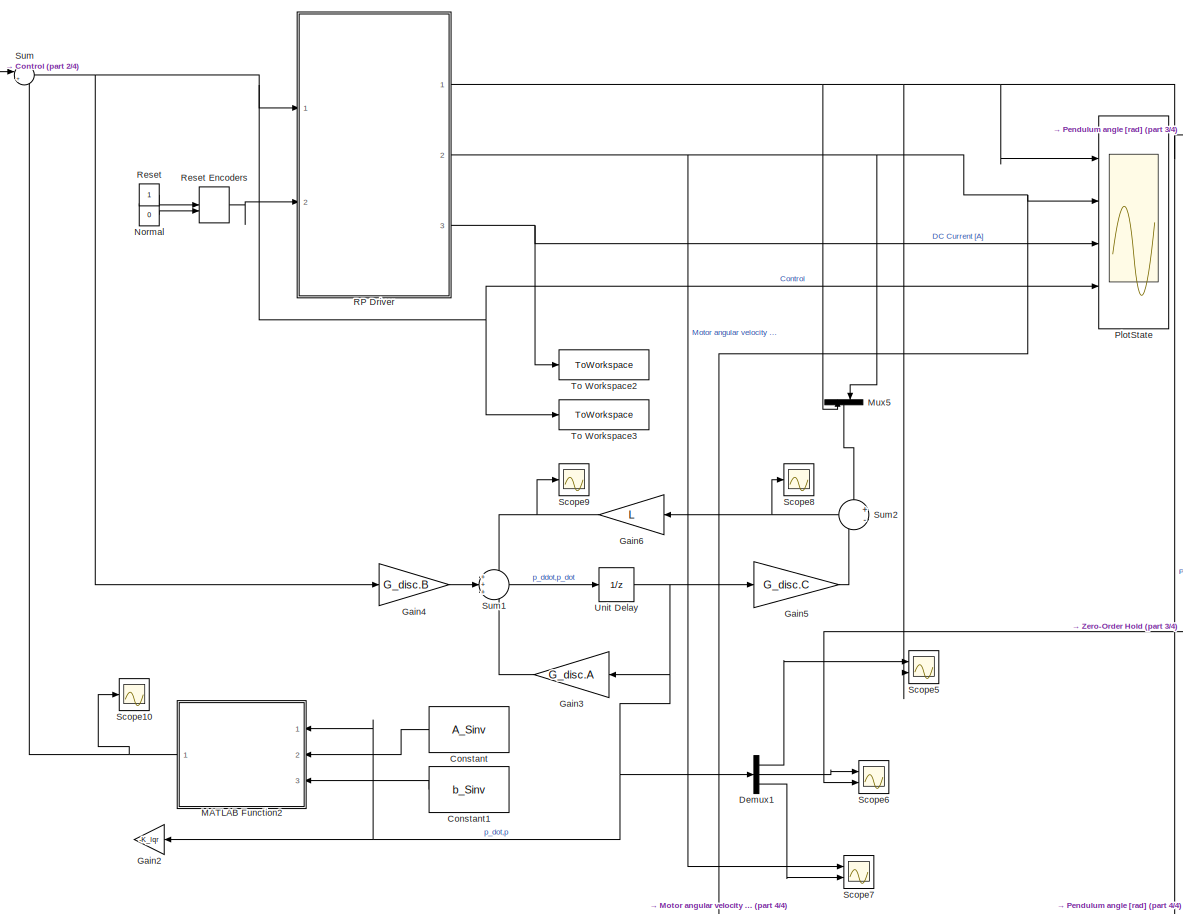
[diagram: root canvas - part 1/4, center side, full height]
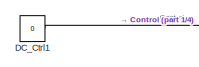
[diagram: root canvas - part 2/4, top left region]
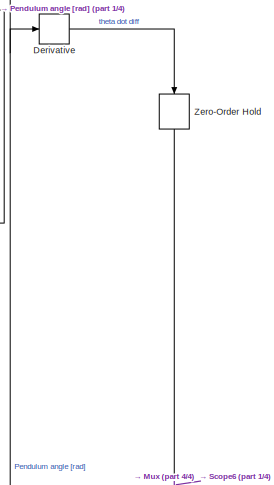
[diagram: root canvas - part 3/4, middle right region]
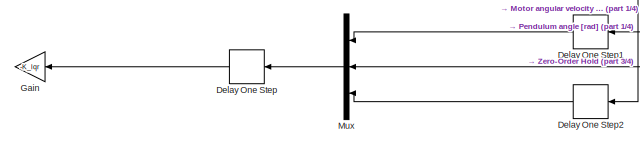
[diagram: root canvas - part 4/4, bottom center region]
MODEL slx_8f51fe5e5e6c
KIND model
CONFIG AbsTol = auto
CONFIG EnableMultiTasking = on
CONFIG FixedStep = h
CONFIG InitFcn = hwinit
CONFIG MaxStep = auto
CONFIG MinStep = auto
CONFIG PreLoadFcn = warning('off','MATLAB:dispatcher:InexactMatch');\n\n
CONFIG RelTol = 1e-3
CONFIG SampleTimeConstraint = Unconstrained
CONFIG SolverName = FixedStepDiscrete
CONFIG StartTime = 0.0
CONFIG StopTime = 60
BLOCK [Constant] Constant
  NameLocation = top
  OutDataTypeStr = Inherit: Inherit via back propagation
  Value = A_Sinv
BLOCK [Constant] Constant1
  NameLocation = top
  OutDataTypeStr = Inherit: Inherit via back propagation
  Value = b_Sinv
BLOCK [Constant] DC_Ctrl1
  Value = 0
BLOCK [Delay] Delay One Step
  DelayLength = 1
  InputPortMap = u0
  NameLocation = top
  Ports = [1, 1]
  SampleTime = h
BLOCK [Delay] Delay One Step1
  DelayLength = 1
  InputPortMap = u0
  NameLocation = top
  Ports = [1, 1]
  SampleTime = h
BLOCK [Delay] Delay One Step2
  DelayLength = 1
  InputPortMap = u0
  NameLocation = top
  Ports = [1, 1]
  SampleTime = h
BLOCK [Demux] Demux1
  Outputs = 3
  Ports = [1, 3]
BLOCK [Derivative] Derivative
BLOCK [Gain] Gain
  Gain = -K_lqr
  Multiplication = Matrix(K*u)
  NameLocation = top
BLOCK [Gain] Gain2
  Commented = through
  Gain = -K_lqr
  Multiplication = Matrix(K*u)
  NameLocation = top
BLOCK [Gain] Gain3
  Gain = G_disc.A
  Multiplication = Matrix(K*u)
  NameLocation = top
BLOCK [Gain] Gain4
  Gain = G_disc.B
  Multiplication = Matrix(K*u)
BLOCK [Gain] Gain5
  Gain = G_disc.C
  Multiplication = Matrix(K*u)
BLOCK [Gain] Gain6
  Gain = L
  Multiplication = Matrix(K*u)
  NameLocation = top
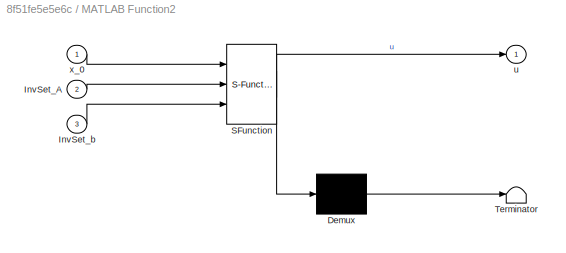
BLOCK [SubSystem] MATLAB Function2
  ErrorFcn = Stateflow.Translate.translate
  NameLocation = top
  PermitHierarchicalResolution = ExplicitOnly
  Ports = [3, 1]
  RequestExecContextInheritance = off
  SFBlockType = MATLAB Function
  TreatAsAtomicUnit = on
BLOCK [Demux] MATLAB Function2/ Demux 
  Outputs = 1
  Ports = [1, 1]
BLOCK [S-Function] MATLAB Function2/ SFunction 
  EnableBusSupport = on
  FunctionName = sf_sfun
  PortCounts = [3 2]
  Ports = [3, 2]
  SFcnIsStateOwnerBlock = off
  SFunctionDeploymentMode = off
  Tag = Stateflow S-Function 2
BLOCK [Terminator] MATLAB Function2/ Terminator 
BLOCK [Inport] MATLAB Function2/InvSet_A
  Port = 2
BLOCK [Inport] MATLAB Function2/InvSet_b
  Port = 3
BLOCK [Outport] MATLAB Function2/u
BLOCK [Inport] MATLAB Function2/x_0
BLOCK [Mux] Mux
  DisplayOption = bar
  Inputs = 3
  NameLocation = top
  Ports = [3, 1]
BLOCK [Mux] Mux5
  DisplayOption = bar
  Inputs = 2
  NameLocation = left
  Ports = [2, 1]
BLOCK [Constant] Normal
  Value = 0
BLOCK [Scope] PlotState
  Floating = off
  NumInputPorts = 4
  Ports = [4]
  ScopeSpecificationString = Simulink.scopes.TimeScopeBlockCfg('CurrentConfiguration', extmgr.ConfigurationSet(extmgr.Configuration('Core','General UI',true),extmgr.Configuration('Core','Source UI',true),extmgr.Configuration('Sources','WiredSimulink',true,'DataLoggingVariableName','StateData','DataLoggingSaveFormat','StructureWithTime','DataLoggingMaxPoints','12000','DataLoggingDecimation','1','DataLoggingDecimateData',true),...<+3764ch>
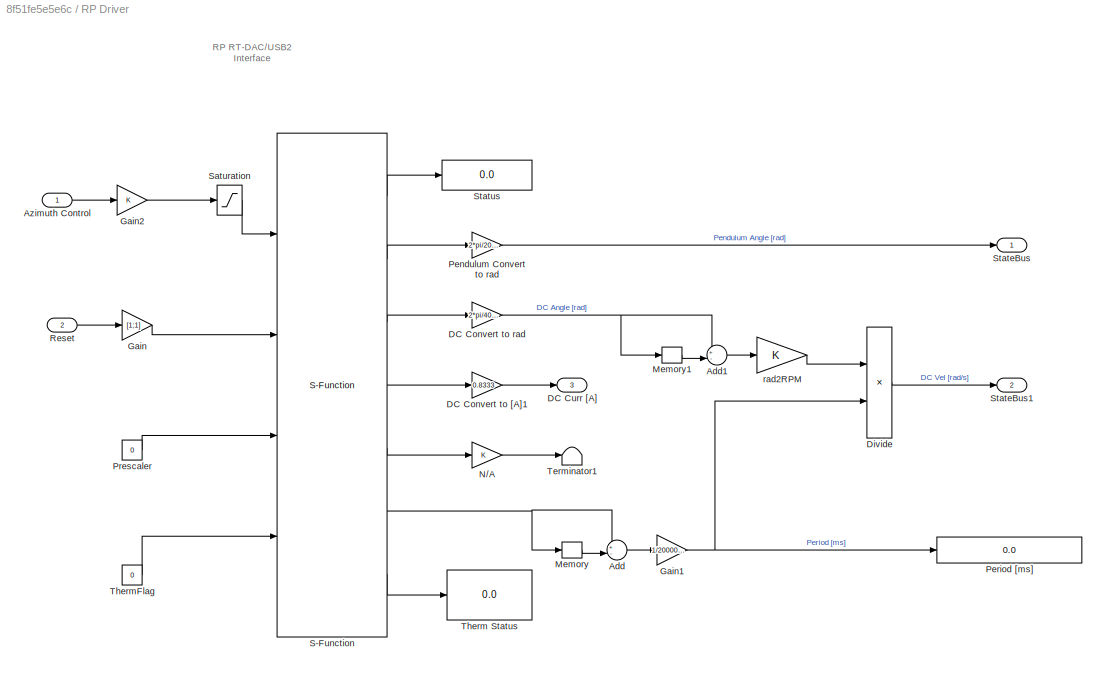
BLOCK [SubSystem] RP Driver
  Ports = [2, 3]
  RequestExecContextInheritance = off
BLOCK [Sum] RP Driver/Add
  Inputs = +-|
  Ports = [2, 1]
BLOCK [Sum] RP Driver/Add1
  Inputs = +-|
  Ports = [2, 1]
BLOCK [Inport] RP Driver/Azimuth Control
BLOCK [Gain] RP Driver/DC Convert to [A]1
  Gain = 0.8333
  OutDataTypeStr = Inherit: Same as input
  ParamDataTypeStr = Inherit: Same as input
  SaturateOnIntegerOverflow = on
BLOCK [Gain] RP Driver/DC Convert to rad
  Gain = 2*pi/4096
  OutDataTypeStr = Inherit: Same as input
  ParamDataTypeStr = Inherit: Same as input
  SaturateOnIntegerOverflow = on
BLOCK [Outport] RP Driver/DC Curr [A]
  Port = 3
  VectorParamsAs1DForOutWhenUnconnected = off
BLOCK [Product] RP Driver/Divide
  Inputs = */
  Ports = [2, 1]
BLOCK [Gain] RP Driver/Gain
  Gain = [1;1]
BLOCK [Gain] RP Driver/Gain1
  Gain = 1/20000000
BLOCK [Gain] RP Driver/Gain2
BLOCK [Memory] RP Driver/Memory
  NameLocation = top
BLOCK [Memory] RP Driver/Memory1
  NameLocation = top
BLOCK [Gain] RP Driver/N//A
  OutDataTypeStr = Inherit: Same as input
  ParamDataTypeStr = Inherit: Same as input
  SaturateOnIntegerOverflow = on
BLOCK [Gain] RP Driver/Pendulum Convert to rad
  Gain = 2*pi/20000
  OutDataTypeStr = Inherit: Same as input
  ParamDataTypeStr = Inherit: Same as input
  SaturateOnIntegerOverflow = on
BLOCK [Display] RP Driver/Period [ms]
  Decimation = 1
  Format = long
  Ports = [1]
BLOCK [Constant] RP Driver/Prescaler
  Value = 0
BLOCK [Inport] RP Driver/Reset
  Port = 2
BLOCK [S-Function] RP Driver/S-Function
  EnableBusSupport = off
  FunctionName = rtdacusb2_rpend_dd
  Parameters = 1, h
  Ports = [4, 7]
  SFcnIsStateOwnerBlock = off
  SFunctionDeploymentMode = off
BLOCK [Saturate] RP Driver/Saturation
  LowerLimit = -1
  UpperLimit = 1
BLOCK [Outport] RP Driver/StateBus
  VectorParamsAs1DForOutWhenUnconnected = off
BLOCK [Outport] RP Driver/StateBus1
  Port = 2
  VectorParamsAs1DForOutWhenUnconnected = off
BLOCK [Display] RP Driver/Status
  Decimation = 1
  Ports = [1]
BLOCK [Terminator] RP Driver/Terminator1
BLOCK [Display] RP Driver/Therm Status
  Decimation = 1
  Ports = [1]
BLOCK [Constant] RP Driver/ThermFlag
  Value = 0
BLOCK [Gain] RP Driver/rad2RPM
  OutDataTypeStr = Inherit: Same as input
  ParamDataTypeStr = Inherit: Same as input
  SaturateOnIntegerOverflow = on
BLOCK [Constant] Reset
  NameLocation = top
BLOCK [ManualSwitch] Reset Encoders
  CurrentSetting = 0
BLOCK [Scope] Scope10
  Floating = off
  NumInputPorts = 1
  Ports = [1]
  ScopeSpecificationString = Simulink.scopes.TimeScopeBlockCfg('CurrentConfiguration', extmgr.ConfigurationSet(extmgr.Configuration('Core','General UI',true),extmgr.Configuration('Core','Source UI',true),extmgr.Configuration('Sources','WiredSimulink',true,'DataLoggingVariableName','ScopeData1'),extmgr.Configuration('Visuals','Time Domain',true,'SerializedDisplays',{struct('MinYLimReal','-1.51201','MaxYLimReal','0.64323','YLab...<+1400ch>
BLOCK [Scope] Scope5
  Floating = off
  NumInputPorts = 2
  Ports = [2]
  ScopeSpecificationString = Simulink.scopes.TimeScopeBlockCfg('CurrentConfiguration', extmgr.ConfigurationSet(extmgr.Configuration('Core','General UI',true),extmgr.Configuration('Core','Source UI',true),extmgr.Configuration('Sources','WiredSimulink',true,'DataLoggingVariableName','ScopeData1'),extmgr.Configuration('Visuals','Time Domain',true,'SerializedDisplays',{struct('MinYLimReal','-0.70285','MaxYLimReal','0.46898','YLab...<+1461ch>
BLOCK [Scope] Scope6
  Floating = off
  NumInputPorts = 2
  Ports = [2]
  ScopeSpecificationString = Simulink.scopes.TimeScopeBlockCfg('CurrentConfiguration', extmgr.ConfigurationSet(extmgr.Configuration('Core','General UI',true),extmgr.Configuration('Core','Source UI',true),extmgr.Configuration('Sources','WiredSimulink',true,'DataLoggingVariableName','ScopeData2'),extmgr.Configuration('Visuals','Time Domain',true,'SerializedDisplays',{struct('MinYLimReal','-33.95194','MaxYLimReal','41.64603','YL...<+1463ch>
BLOCK [Scope] Scope7
  Floating = off
  NumInputPorts = 2
  Ports = [2]
  ScopeSpecificationString = Simulink.scopes.TimeScopeBlockCfg('CurrentConfiguration', extmgr.ConfigurationSet(extmgr.Configuration('Core','General UI',true),extmgr.Configuration('Core','Source UI',true),extmgr.Configuration('Sources','WiredSimulink',true,'DataLoggingVariableName','ScopeData3'),extmgr.Configuration('Visuals','Time Domain',true,'SerializedDisplays',{struct('MinYLimReal','-10.12898','MaxYLimReal','60.72442','YL...<+1476ch>
BLOCK [Scope] Scope8
  Floating = off
  NumInputPorts = 1
  Ports = [1]
  ScopeSpecificationString = Simulink.scopes.TimeScopeBlockCfg('CurrentConfiguration', extmgr.ConfigurationSet(extmgr.Configuration('Core','General UI',true),extmgr.Configuration('Core','Source UI',true),extmgr.Configuration('Sources','WiredSimulink',true,'DataLoggingVariableName','ScopeData4'),extmgr.Configuration('Visuals','Time Domain',true,'SerializedDisplays',{struct('MinYLimReal','-38554505844173753514925357575098303675...<+2251ch>
BLOCK [Scope] Scope9
  Floating = off
  NumInputPorts = 1
  Ports = [1]
  ScopeSpecificationString = Simulink.scopes.TimeScopeBlockCfg('CurrentConfiguration', extmgr.ConfigurationSet(extmgr.Configuration('Core','General UI',true),extmgr.Configuration('Core','Source UI',true),extmgr.Configuration('Sources','WiredSimulink',true,'DataLoggingVariableName','ScopeData5'),extmgr.Configuration('Visuals','Time Domain',true,'SerializedDisplays',{struct('MinYLimReal','-70.21564','MaxYLimReal','49.78761','YL...<+1465ch>
BLOCK [Sum] Sum
  Inputs = |++
  Ports = [2, 1]
BLOCK [Sum] Sum1
  Inputs = +++
  Ports = [3, 1]
BLOCK [Sum] Sum2
  Inputs = +-
  NameLocation = top
  Ports = [2, 1]
BLOCK [ToWorkspace] To Workspace2
  FixptAsFi = on
  MaxDataPoints = inf
  Ports = [1]
  SampleTime = -1
  SaveFormat = Timeseries
  VariableName = i
BLOCK [ToWorkspace] To Workspace3
  FixptAsFi = on
  MaxDataPoints = inf
  Ports = [1]
  SampleTime = -1
  SaveFormat = Timeseries
  VariableName = u
BLOCK [UnitDelay] Unit Delay
  HasFrameUpgradeWarning = on
  SampleTime = Ts
BLOCK [ZeroOrderHold] Zero-Order Hold
  NameLocation = left
  SampleTime = Ts
ANNOTATION RP Driver: RP RT-DAC/USB2 Interface
LINE Constant1:1 -> MATLAB Function2:3
LINE Constant:1 -> MATLAB Function2:2
LINE DC_Ctrl1:1 -> Sum:1
LINE Delay One Step1:1 -> Mux:1
LINE Delay One Step2:1 -> Mux:3
LINE Delay One Step:1 -> Gain:1
LINE Demux1:1 -> Scope5:1
LINE Demux1:2 -> Scope6:1
LINE Demux1:3 -> Scope7:2
LINE Derivative:1 -> Zero-Order Hold:1
LINE Gain3:1 -> Sum1:3
LINE Gain4:1 -> Sum1:2
LINE Gain5:1 -> Sum2:2
NET Gain6:1 -> Scope9:1, Sum1:1
NET MATLAB Function2:1 -> Scope10:1, Sum:2
LINE Mux5:1 -> Sum2:1
LINE Mux:1 -> Delay One Step:1
LINE Normal:1 -> Reset Encoders:2
LINE RP Driver/Add1:1 -> RP Driver/rad2RPM:1
LINE RP Driver/Add:1 -> RP Driver/Gain1:1
LINE RP Driver/Azimuth Control:1 -> RP Driver/Gain2:1
LINE RP Driver/DC Convert to [A]1:1 -> RP Driver/DC Curr [A]:1
NET RP Driver/DC Convert to rad:1 -> RP Driver/Add1:1, RP Driver/Memory1:1
LINE RP Driver/Divide:1 -> RP Driver/StateBus1:1
NET RP Driver/Gain1:1 -> RP Driver/Divide:2, RP Driver/Period [ms]:1
LINE RP Driver/Gain2:1 -> RP Driver/Saturation:1
LINE RP Driver/Gain:1 -> RP Driver/S-Function:2
LINE RP Driver/Memory1:1 -> RP Driver/Add1:2
LINE RP Driver/Memory:1 -> RP Driver/Add:2
LINE RP Driver/N//A:1 -> RP Driver/Terminator1:1
LINE RP Driver/Pendulum Convert to rad:1 -> RP Driver/StateBus:1
LINE RP Driver/Prescaler:1 -> RP Driver/S-Function:3
LINE RP Driver/Reset:1 -> RP Driver/Gain:1
LINE RP Driver/S-Function:1 -> RP Driver/Status:1
LINE RP Driver/S-Function:2 -> RP Driver/Pendulum Convert to rad:1
LINE RP Driver/S-Function:3 -> RP Driver/DC Convert to rad:1
LINE RP Driver/S-Function:4 -> RP Driver/DC Convert to [A]1:1
LINE RP Driver/S-Function:5 -> RP Driver/N//A:1
NET RP Driver/S-Function:6 -> RP Driver/Add:1, RP Driver/Memory:1
LINE RP Driver/S-Function:7 -> RP Driver/Therm Status:1
LINE RP Driver/Saturation:1 -> RP Driver/S-Function:1
LINE RP Driver/ThermFlag:1 -> RP Driver/S-Function:4
LINE RP Driver/rad2RPM:1 -> RP Driver/Divide:1
NET RP Driver:1 -> Delay One Step1:1, Derivative:1, Mux5:1, PlotState:1, Scope5:2
NET RP Driver:2 -> Delay One Step2:1, Mux5:2, PlotState:2, Scope7:1
NET RP Driver:3 -> PlotState:3, To Workspace2:1
LINE Reset Encoders:1 -> RP Driver:2
LINE Reset:1 -> Reset Encoders:1
LINE Sum1:1 -> Unit Delay:1
NET Sum2:1 -> Gain6:1, Scope8:1
NET Sum:1 -> Gain4:1, PlotState:4, RP Driver:1, To Workspace3:1
NET Unit Delay:1 -> Demux1:1, Gain2:1, Gain3:1, Gain5:1, MATLAB Function2:1
NET Zero-Order Hold:1 -> Mux:2, Scope6:2
note: NET lines group one-source signal fan-out (src -> all destinations, sorted); 1:1 wires keep LINE
CHART MATLAB Function2 states=1 transitions=1
  STATE_LABEL 'eML_blk_kernel()'
  STATE_LABEL 'SCRIPT:\n\nfunction u = fcn(x_0, InvSet_A, InvSet_b)\n\nG_disc.A = [1.01245621948217 0.0500306038965976 1.40121956403498e-05;\n    0.498695053520506 1.00537188597042 0.000556377324148220;\n    0 0 0.951367362767549]; \nG_disc.B = [-0.00374072094651530;\n    -0.148158292603784;\n    16.9179146743878]; \nG_disc.C = [1 0 0; 0 0 1];\nG_disc.D = [0;0];\n\n\nweight.Q =[4 0 0;0 3.5 0; 0 0 0.0071];   % weight on output...<+1976ch>'
CHART  states=0 transitions=0
